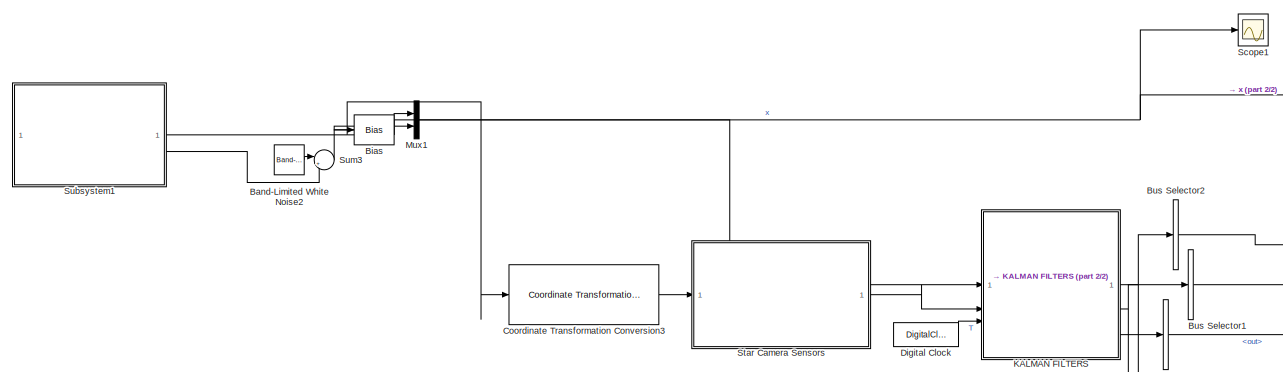
[diagram: root canvas - part 1/2, top center region]
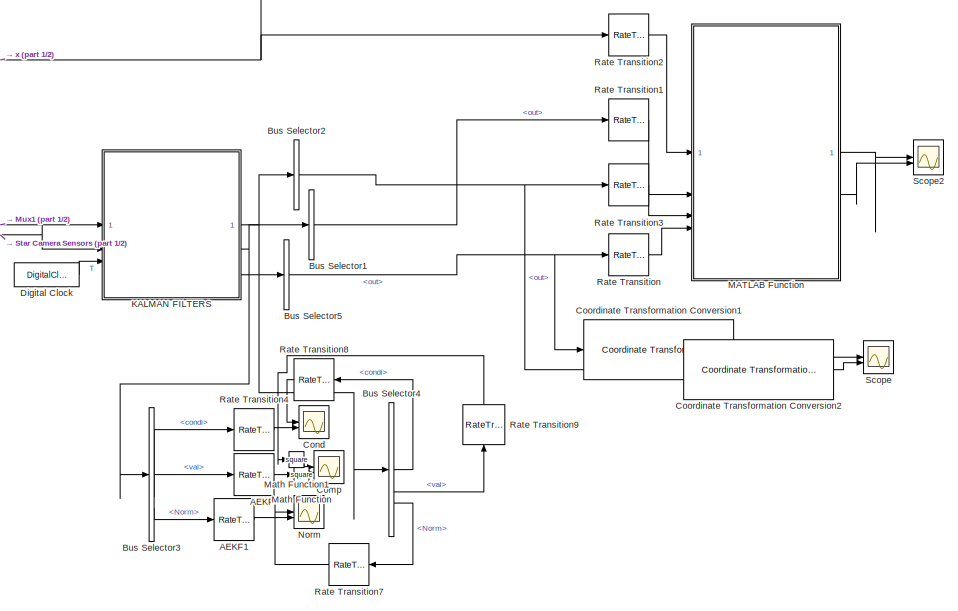
[diagram: root canvas - part 2/2, right side, full height]
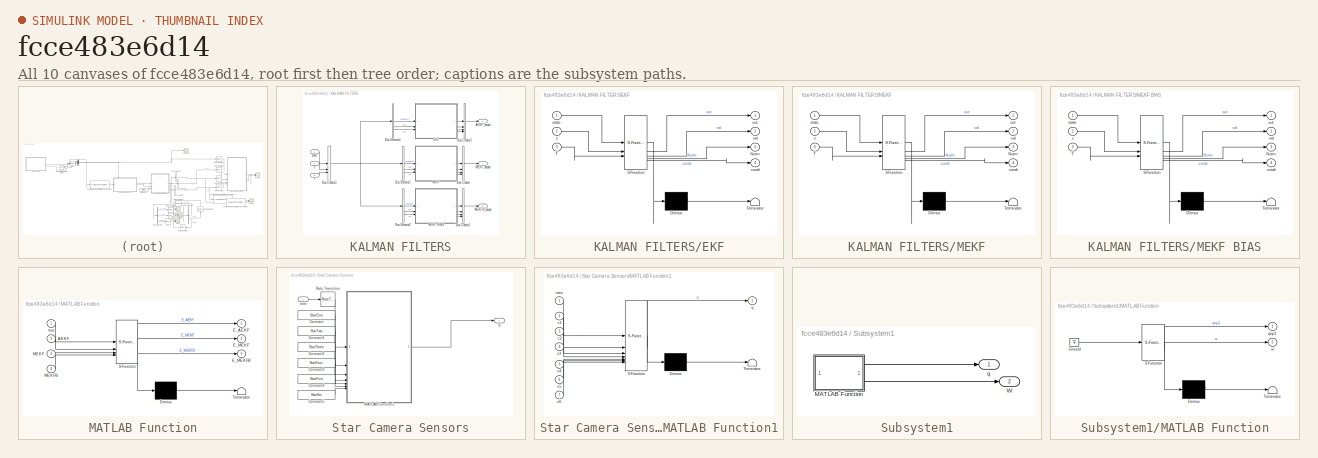
[diagram: thumbnail index - all 10 canvases of the model, root first then tree order]
MODEL slx_fcce483e6d14
KIND model
CONFIG AbsTol = auto
CONFIG EnableMultiTasking = off
CONFIG FixedStep = auto
CONFIG MaxStep = auto
CONFIG MinStep = auto
CONFIG RelTol = 1e-3
CONFIG SampleTimeConstraint = Unconstrained
CONFIG SolverName = VariableStepAuto
CONFIG StartTime = 0.0
CONFIG StopTime = timetorevolve
WORKSPACE source: mxarray member
WORKSPACE Ts_Camera = 0.1
BLOCK [RateTransition] AEKF
  Integrity = off
  OutPortSampleTime = ComTs
BLOCK [RateTransition] AEKF1
  Integrity = off
  OutPortSampleTime = ComTs
BLOCK [Reference] Band-Limited White Noise2  REF=simulink/Sources/Band-Limited
White Noise
  SourceBlock = simulink/Sources/Band-Limited\nWhite Noise
  SourceType = Band-Limited White Noise.
BLOCK [Bias] Bias
  Bias = 0.0001
  SaturateOnIntegerOverflow = off
BLOCK [BusSelector] Bus Selector1
  OutputSignals = out
BLOCK [BusSelector] Bus Selector2
  OutputSignals = out
BLOCK [BusSelector] Bus Selector3
  OutputSignals = condi,val,Norm
BLOCK [BusSelector] Bus Selector4
  OutputSignals = condi,val,Norm
BLOCK [BusSelector] Bus Selector5
  OutputSignals = out
BLOCK [Scope] Comp
  Floating = off
  NumInputPorts = 2
  ScopeSpecificationString = Simulink.scopes.TimeScopeBlockCfg('CurrentConfiguration', extmgr.ConfigurationSet(extmgr.Configuration('Core','General UI',true,'FigureColor',[1 1 1]),extmgr.Configuration('Core','Source UI',true),extmgr.Configuration('Sources','WiredSimulink',true,'DataLoggingVariableName','ScopeData3'),extmgr.Configuration('Visuals','Time Domain',true,'SerializedDisplays',{struct('MinYLimReal','-0.00000000006','...<+1842ch>
BLOCK [Scope] Cond
  Floating = off
  NumInputPorts = 2
  ScopeSpecificationString = Simulink.scopes.TimeScopeBlockCfg('CurrentConfiguration', extmgr.ConfigurationSet(extmgr.Configuration('Core','General UI',true,'FigureColor',[1 1 1]),extmgr.Configuration('Core','Source UI',true),extmgr.Configuration('Sources','WiredSimulink',true,'DataLoggingVariableName','ScopeData1'),extmgr.Configuration('Visuals','Time Domain',true,'SerializedDisplays',{struct('MinYLimReal','0.999999','MaxYLi...<+1669ch>
BLOCK [Reference] Coordinate Transformation Conversion1  REF=robotcorelib/Coordinate Transformation Conversion
  LibrarySourceBlock = robotutilslib/Coordinate Transformation Conversion
  NameLocation = left
  SourceBlock = robotcorelib/Coordinate Transformation Conversion
  SourceType = robotics.slcore.internal.block.CoordinateTransformationConversion
BLOCK [Reference] Coordinate Transformation Conversion2  REF=robotcorelib/Coordinate Transformation Conversion
  LibrarySourceBlock = robotutilslib/Coordinate Transformation Conversion
  SourceBlock = robotcorelib/Coordinate Transformation Conversion
  SourceType = robotics.slcore.internal.block.CoordinateTransformationConversion
BLOCK [Reference] Coordinate Transformation Conversion3  REF=robotcorelib/Coordinate Transformation Conversion
  LibrarySourceBlock = robotutilslib/Coordinate Transformation Conversion
  SourceBlock = robotcorelib/Coordinate Transformation Conversion
  SourceType = robotics.slcore.internal.block.CoordinateTransformationConversion
BLOCK [DigitalClock] Digital Clock
  SampleTime = Ts_System
BLOCK [SubSystem] KALMAN FILTERS
BLOCK [Outport] KALMAN FILTERS/AEKF_output
  Port = 2
BLOCK [BusCreator] KALMAN FILTERS/Bus Creator
  DisplayOption = bar
  InheritFromInputs = on
  Inputs = 4
BLOCK [BusCreator] KALMAN FILTERS/Bus Creator1
  DisplayOption = bar
  InheritFromInputs = on
  Inputs = 4
BLOCK [BusCreator] KALMAN FILTERS/Bus Creator2
  DisplayOption = bar
  InheritFromInputs = on
  Inputs = 4
BLOCK [BusCreator] KALMAN FILTERS/Bus Creator3
  DisplayOption = bar
  InheritFromInputs = on
  Inputs = 3
BLOCK [BusSelector] KALMAN FILTERS/Bus Selector1
  OutputSignals = signal1,q,T
BLOCK [BusSelector] KALMAN FILTERS/Bus Selector2
  OutputSignals = signal1,q,T
BLOCK [BusSelector] KALMAN FILTERS/Bus Selector4
  OutputSignals = signal1,q,T
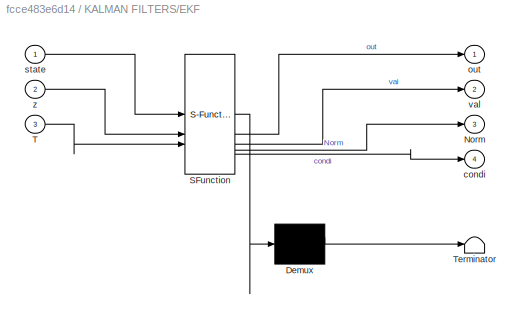
BLOCK [SubSystem] KALMAN FILTERS/EKF
  ErrorFcn = Stateflow.Translate.translate
  LibrarySourceBlock = simulink/User-Defined\nFunctions/MATLAB Function
  PermitHierarchicalResolution = ExplicitOnly
  SFBlockType = MATLAB Function
  TreatAsAtomicUnit = on
BLOCK [Demux] KALMAN FILTERS/EKF/ Demux 
  Outputs = 1
BLOCK [S-Function] KALMAN FILTERS/EKF/ SFunction 
  EnableBusSupport = on
  FunctionName = sf_sfun
  Parameters = Ts_Camera,Ts_System
  PortCounts = [3 5]
  SFcnIsStateOwnerBlock = off
  SFunctionDeploymentMode = off
  Tag = Stateflow S-Function 2
BLOCK [Terminator] KALMAN FILTERS/EKF/ Terminator 
BLOCK [Outport] KALMAN FILTERS/EKF/Norm
  Port = 3
BLOCK [Inport] KALMAN FILTERS/EKF/T
  Port = 3
BLOCK [Outport] KALMAN FILTERS/EKF/condi
  Port = 4
BLOCK [Outport] KALMAN FILTERS/EKF/out
BLOCK [Inport] KALMAN FILTERS/EKF/state
BLOCK [Outport] KALMAN FILTERS/EKF/val
  Port = 2
BLOCK [Inport] KALMAN FILTERS/EKF/z
  Port = 2
BLOCK [SubSystem] KALMAN FILTERS/MEKF
  ErrorFcn = Stateflow.Translate.translate
  LibrarySourceBlock = simulink/User-Defined\nFunctions/MATLAB Function
  PermitHierarchicalResolution = ExplicitOnly
  SFBlockType = MATLAB Function
  TreatAsAtomicUnit = on
BLOCK [SubSystem] KALMAN FILTERS/MEKF BIAS
  ErrorFcn = Stateflow.Translate.translate
  LibrarySourceBlock = simulink/User-Defined\nFunctions/MATLAB Function
  PermitHierarchicalResolution = ExplicitOnly
  SFBlockType = MATLAB Function
  TreatAsAtomicUnit = on
BLOCK [Demux] KALMAN FILTERS/MEKF BIAS/ Demux 
  Outputs = 1
BLOCK [S-Function] KALMAN FILTERS/MEKF BIAS/ SFunction 
  EnableBusSupport = on
  FunctionName = sf_sfun
  Parameters = Ts_Camera,Ts_System
  PortCounts = [3 5]
  SFcnIsStateOwnerBlock = off
  SFunctionDeploymentMode = off
  Tag = Stateflow S-Function 6
BLOCK [Terminator] KALMAN FILTERS/MEKF BIAS/ Terminator 
BLOCK [Outport] KALMAN FILTERS/MEKF BIAS/Norm
  Port = 3
BLOCK [Inport] KALMAN FILTERS/MEKF BIAS/T
  Port = 3
BLOCK [Outport] KALMAN FILTERS/MEKF BIAS/condi
  Port = 4
BLOCK [Outport] KALMAN FILTERS/MEKF BIAS/out
BLOCK [Inport] KALMAN FILTERS/MEKF BIAS/state
BLOCK [Outport] KALMAN FILTERS/MEKF BIAS/val
  Port = 2
BLOCK [Inport] KALMAN FILTERS/MEKF BIAS/z
  Port = 2
BLOCK [Demux] KALMAN FILTERS/MEKF/ Demux 
  Outputs = 1
BLOCK [S-Function] KALMAN FILTERS/MEKF/ SFunction 
  EnableBusSupport = on
  FunctionName = sf_sfun
  Parameters = Ts_Camera,Ts_System
  PortCounts = [3 5]
  SFcnIsStateOwnerBlock = off
  SFunctionDeploymentMode = off
  Tag = Stateflow S-Function 3
BLOCK [Terminator] KALMAN FILTERS/MEKF/ Terminator 
BLOCK [Outport] KALMAN FILTERS/MEKF/Norm
  Port = 3
BLOCK [Inport] KALMAN FILTERS/MEKF/T
  Port = 3
BLOCK [Outport] KALMAN FILTERS/MEKF/condi
  Port = 4
BLOCK [Outport] KALMAN FILTERS/MEKF/out
BLOCK [Inport] KALMAN FILTERS/MEKF/state
BLOCK [Outport] KALMAN FILTERS/MEKF/val
  Port = 2
BLOCK [Inport] KALMAN FILTERS/MEKF/z
  Port = 2
BLOCK [Outport] KALMAN FILTERS/MEKFB_output
  Port = 3
BLOCK [Outport] KALMAN FILTERS/MEKF_output
BLOCK [Inport] KALMAN FILTERS/T
  Port = 3
BLOCK [Inport] KALMAN FILTERS/state
BLOCK [Inport] KALMAN FILTERS/z
  Port = 2
BLOCK [SubSystem] MATLAB Function
  ErrorFcn = Stateflow.Translate.translate
  LibrarySourceBlock = simulink/User-Defined\nFunctions/MATLAB Function
  PermitHierarchicalResolution = ExplicitOnly
  SFBlockType = MATLAB Function
  TreatAsAtomicUnit = on
BLOCK [Demux] MATLAB Function/ Demux 
  Outputs = 1
BLOCK [S-Function] MATLAB Function/ SFunction 
  EnableBusSupport = on
  FunctionName = sf_sfun
  PortCounts = [4 4]
  SFcnIsStateOwnerBlock = off
  SFunctionDeploymentMode = off
  Tag = Stateflow S-Function 4
BLOCK [Terminator] MATLAB Function/ Terminator 
BLOCK [Inport] MATLAB Function/AEKF
  Port = 2
BLOCK [Outport] MATLAB Function/E_AEKF
BLOCK [Outport] MATLAB Function/E_MEKF
  Port = 2
BLOCK [Outport] MATLAB Function/E_MEKFB
  Port = 3
BLOCK [Inport] MATLAB Function/MEKF
  Port = 3
BLOCK [Inport] MATLAB Function/MEKFB
  Port = 4
BLOCK [Inport] MATLAB Function/true
BLOCK [Math] Math Function
  Operator = square
BLOCK [Math] Math Function1
  Operator = square
BLOCK [Mux] Mux1
  DisplayOption = bar
  Inputs = 2
BLOCK [Scope] Norm
  Floating = off
  NumInputPorts = 2
  ScopeSpecificationString = Simulink.scopes.TimeScopeBlockCfg('CurrentConfiguration', extmgr.ConfigurationSet(extmgr.Configuration('Core','General UI',true,'FigureColor',[1 1 1]),extmgr.Configuration('Core','Source UI',true),extmgr.Configuration('Sources','WiredSimulink',true,'DataLoggingVariableName','ScopeData2'),extmgr.Configuration('Visuals','Time Domain',true,'SerializedDisplays',{struct('MinYLimReal','-0.62','MaxYLimRe...<+1645ch>
BLOCK [RateTransition] Rate Transition
  Integrity = off
  OutPortSampleTime = ComTs
BLOCK [RateTransition] Rate Transition1
  Integrity = off
  OutPortSampleTime = ComTs
BLOCK [RateTransition] Rate Transition2
  Integrity = off
  OutPortSampleTime = ComTs
BLOCK [RateTransition] Rate Transition3
  Integrity = off
  OutPortSampleTime = ComTs
BLOCK [RateTransition] Rate Transition4
  Integrity = off
  OutPortSampleTime = ComTs
BLOCK [RateTransition] Rate Transition7
  Integrity = off
  OutPortSampleTime = ComTs
BLOCK [RateTransition] Rate Transition8
  Integrity = off
  OutPortSampleTime = ComTs
BLOCK [RateTransition] Rate Transition9
  Integrity = off
  NameLocation = right
  OutPortSampleTime = ComTs
BLOCK [Scope] Scope
  Floating = off
  NumInputPorts = 2
  ScopeSpecificationString = Simulink.scopes.TimeScopeBlockCfg('CurrentConfiguration', extmgr.ConfigurationSet(extmgr.Configuration('Core','General UI',true),extmgr.Configuration('Core','Source UI',true),extmgr.Configuration('Sources','WiredSimulink',true,'DataLoggingVariableName','ScopeData1'),extmgr.Configuration('Visuals','Time Domain',true,'SerializedDisplays',{struct('MinYLimReal','-3.92691','MaxYLimReal','3.92693','YLab...<+1916ch>
BLOCK [Scope] Scope1
  Floating = off
  NumInputPorts = 1
  ScopeSpecificationString = Simulink.scopes.TimeScopeBlockCfg('CurrentConfiguration', extmgr.ConfigurationSet(extmgr.Configuration('Core','General UI',true,'FigureColor',[0 0 0]),extmgr.Configuration('Core','Source UI',true),extmgr.Configuration('Sources','WiredSimulink',true,'DataLoggingVariableName','ScopeData1'),extmgr.Configuration('Visuals','Time Domain',true,'SerializedDisplays',{struct('MinYLimReal','-0.67411','MaxYLi...<+1423ch>
BLOCK [Scope] Scope2
  Floating = off
  NumInputPorts = 2
  ScopeSpecificationString = Simulink.scopes.TimeScopeBlockCfg('CurrentConfiguration', extmgr.ConfigurationSet(extmgr.Configuration('Core','General UI',true,'FigureColor',[1 1 1]),extmgr.Configuration('Core','Source UI',true),extmgr.Configuration('Sources','WiredSimulink',true,'DataLoggingVariableName','ScopeData1'),extmgr.Configuration('Visuals','Time Domain',true,'SerializedDisplays',{struct('MinYLimReal','0.00792','MaxYLim...<+1732ch>
BLOCK [SubSystem] Star Camera Sensors
BLOCK [Constant] Star Camera Sensors/Constant
  Value = StarOne
BLOCK [Constant] Star Camera Sensors/Constant1
  Value = StarTwo
BLOCK [Constant] Star Camera Sensors/Constant2
  Value = StarThree
BLOCK [Constant] Star Camera Sensors/Constant3
  Value = StarFour
BLOCK [Constant] Star Camera Sensors/Constant4
  Value = StarFive
BLOCK [Constant] Star Camera Sensors/Constant5
  Value = StarSix
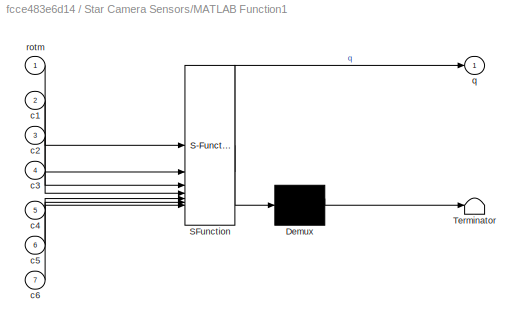
BLOCK [SubSystem] Star Camera Sensors/MATLAB Function1
  ErrorFcn = Stateflow.Translate.translate
  LibrarySourceBlock = simulink/User-Defined\nFunctions/MATLAB Function
  PermitHierarchicalResolution = ExplicitOnly
  SFBlockType = MATLAB Function
  TreatAsAtomicUnit = on
BLOCK [Demux] Star Camera Sensors/MATLAB Function1/ Demux 
  Outputs = 1
BLOCK [S-Function] Star Camera Sensors/MATLAB Function1/ SFunction 
  EnableBusSupport = on
  FunctionName = sf_sfun
  PortCounts = [7 2]
  SFcnIsStateOwnerBlock = off
  SFunctionDeploymentMode = off
  Tag = Stateflow S-Function 1
BLOCK [Terminator] Star Camera Sensors/MATLAB Function1/ Terminator 
BLOCK [Inport] Star Camera Sensors/MATLAB Function1/c1
  Port = 2
BLOCK [Inport] Star Camera Sensors/MATLAB Function1/c2
  Port = 3
BLOCK [Inport] Star Camera Sensors/MATLAB Function1/c3
  Port = 4
BLOCK [Inport] Star Camera Sensors/MATLAB Function1/c4
  Port = 5
BLOCK [Inport] Star Camera Sensors/MATLAB Function1/c5
  Port = 6
BLOCK [Inport] Star Camera Sensors/MATLAB Function1/c6
  Port = 7
BLOCK [Outport] Star Camera Sensors/MATLAB Function1/q
BLOCK [Inport] Star Camera Sensors/MATLAB Function1/rotm
BLOCK [RateTransition] Star Camera Sensors/Rate Transition
  Integrity = off
  OutPortSampleTime = Ts_Camera
BLOCK [Outport] Star Camera Sensors/q
BLOCK [Inport] Star Camera Sensors/rotm
BLOCK [SubSystem] Subsystem1
BLOCK [SubSystem] Subsystem1/MATLAB Function
  ErrorFcn = Stateflow.Translate.translate
  LibrarySourceBlock = simulink/User-Defined\nFunctions/MATLAB Function
  PermitHierarchicalResolution = ExplicitOnly
  SFBlockType = MATLAB Function
  TreatAsAtomicUnit = on
BLOCK [Demux] Subsystem1/MATLAB Function/ Demux 
  Outputs = 1
BLOCK [Ground] Subsystem1/MATLAB Function/ Ground 
BLOCK [S-Function] Subsystem1/MATLAB Function/ SFunction 
  EnableBusSupport = on
  FunctionName = sf_sfun
  Parameters = ConstantO,Ts_System
  PortCounts = [1 3]
  SFcnIsStateOwnerBlock = off
  SFunctionDeploymentMode = off
  Tag = Stateflow S-Function 5
BLOCK [Terminator] Subsystem1/MATLAB Function/ Terminator 
BLOCK [Outport] Subsystem1/MATLAB Function/qnp1
BLOCK [Outport] Subsystem1/MATLAB Function/w
  Port = 2
BLOCK [Outport] Subsystem1/W
  Port = 2
BLOCK [Outport] Subsystem1/q
BLOCK [Sum] Sum3
  Inputs = |++
LINE AEKF1:1 -> Norm:2
LINE AEKF:1 -> Math Function:1
LINE Band-Limited White Noise2:1 -> Sum3:1
LINE Bias:1 -> Mux1:2
LINE Bus Selector1:1 -> Rate Transition1:1
NET Bus Selector2:1 -> Coordinate Transformation Conversion2:1, Rate Transition3:1
LINE Bus Selector3:1 -> Rate Transition4:1
LINE Bus Selector3:2 -> AEKF:1
LINE Bus Selector3:3 -> AEKF1:1
LINE Bus Selector4:1 -> Rate Transition8:1
LINE Bus Selector4:2 -> Rate Transition9:1
LINE Bus Selector4:3 -> Rate Transition7:1
NET Bus Selector5:1 -> Coordinate Transformation Conversion1:1, Rate Transition:1
LINE Coordinate Transformation Conversion1:1 -> Scope:1
LINE Coordinate Transformation Conversion2:1 -> Scope:2
LINE Coordinate Transformation Conversion3:1 -> Star Camera Sensors:1
LINE Digital Clock:1 -> KALMAN FILTERS:3
LINE KALMAN FILTERS/Bus Creator1:1 -> KALMAN FILTERS/MEKFB_output:1
LINE KALMAN FILTERS/Bus Creator2:1 -> KALMAN FILTERS/AEKF_output:1
NET KALMAN FILTERS/Bus Creator3:1 -> KALMAN FILTERS/Bus Selector1:1, KALMAN FILTERS/Bus Selector2:1, KALMAN FILTERS/Bus Selector4:1
LINE KALMAN FILTERS/Bus Creator:1 -> KALMAN FILTERS/MEKF_output:1
LINE KALMAN FILTERS/Bus Selector1:1 -> KALMAN FILTERS/MEKF:1
LINE KALMAN FILTERS/Bus Selector1:2 -> KALMAN FILTERS/MEKF:2
LINE KALMAN FILTERS/Bus Selector1:3 -> KALMAN FILTERS/MEKF:3
LINE KALMAN FILTERS/Bus Selector2:1 -> KALMAN FILTERS/MEKF BIAS:1
LINE KALMAN FILTERS/Bus Selector2:2 -> KALMAN FILTERS/MEKF BIAS:2
LINE KALMAN FILTERS/Bus Selector2:3 -> KALMAN FILTERS/MEKF BIAS:3
LINE KALMAN FILTERS/Bus Selector4:1 -> KALMAN FILTERS/EKF:1
LINE KALMAN FILTERS/Bus Selector4:2 -> KALMAN FILTERS/EKF:2
LINE KALMAN FILTERS/Bus Selector4:3 -> KALMAN FILTERS/EKF:3
LINE KALMAN FILTERS/EKF:1 -> KALMAN FILTERS/Bus Creator2:1
LINE KALMAN FILTERS/EKF:2 -> KALMAN FILTERS/Bus Creator2:2
LINE KALMAN FILTERS/EKF:3 -> KALMAN FILTERS/Bus Creator2:3
LINE KALMAN FILTERS/EKF:4 -> KALMAN FILTERS/Bus Creator2:4
LINE KALMAN FILTERS/MEKF BIAS:1 -> KALMAN FILTERS/Bus Creator1:1
LINE KALMAN FILTERS/MEKF BIAS:2 -> KALMAN FILTERS/Bus Creator1:2
LINE KALMAN FILTERS/MEKF BIAS:3 -> KALMAN FILTERS/Bus Creator1:3
LINE KALMAN FILTERS/MEKF BIAS:4 -> KALMAN FILTERS/Bus Creator1:4
LINE KALMAN FILTERS/MEKF:1 -> KALMAN FILTERS/Bus Creator:1
LINE KALMAN FILTERS/MEKF:2 -> KALMAN FILTERS/Bus Creator:2
LINE KALMAN FILTERS/MEKF:3 -> KALMAN FILTERS/Bus Creator:3
LINE KALMAN FILTERS/MEKF:4 -> KALMAN FILTERS/Bus Creator:4
LINE KALMAN FILTERS/T:1 -> KALMAN FILTERS/Bus Creator3:3
LINE KALMAN FILTERS/state:1 -> KALMAN FILTERS/Bus Creator3:1
LINE KALMAN FILTERS/z:1 -> KALMAN FILTERS/Bus Creator3:2
NET KALMAN FILTERS:1 -> Bus Selector2:1, Bus Selector4:1
NET KALMAN FILTERS:2 -> Bus Selector1:1, Bus Selector3:1
LINE KALMAN FILTERS:3 -> Bus Selector5:1
LINE MATLAB Function:1 -> Scope2:1
LINE MATLAB Function:2 -> Scope2:2
LINE Math Function1:1 -> Comp:1
LINE Math Function:1 -> Comp:2
LINE Mux1:1 -> KALMAN FILTERS:1
LINE Rate Transition1:1 -> MATLAB Function:2
LINE Rate Transition2:1 -> MATLAB Function:1
LINE Rate Transition3:1 -> MATLAB Function:3
LINE Rate Transition4:1 -> Cond:2
LINE Rate Transition7:1 -> Norm:1
LINE Rate Transition8:1 -> Cond:1
LINE Rate Transition9:1 -> Math Function1:1
LINE Rate Transition:1 -> MATLAB Function:4
LINE Star Camera Sensors/Constant1:1 -> Star Camera Sensors/MATLAB Function1:3
LINE Star Camera Sensors/Constant2:1 -> Star Camera Sensors/MATLAB Function1:4
LINE Star Camera Sensors/Constant3:1 -> Star Camera Sensors/MATLAB Function1:5
LINE Star Camera Sensors/Constant4:1 -> Star Camera Sensors/MATLAB Function1:6
LINE Star Camera Sensors/Constant5:1 -> Star Camera Sensors/MATLAB Function1:7
LINE Star Camera Sensors/Constant:1 -> Star Camera Sensors/MATLAB Function1:2
LINE Star Camera Sensors/MATLAB Function1:1 -> Star Camera Sensors/q:1
LINE Star Camera Sensors/Rate Transition:1 -> Star Camera Sensors/MATLAB Function1:1
LINE Star Camera Sensors/rotm:1 -> Star Camera Sensors/Rate Transition:1
LINE Star Camera Sensors:1 -> KALMAN FILTERS:2
LINE Subsystem1/MATLAB Function:1 -> Subsystem1/q:1
LINE Subsystem1/MATLAB Function:2 -> Subsystem1/W:1
NET Subsystem1:1 -> Coordinate Transformation Conversion3:1, Mux1:1, Rate Transition2:1, Scope1:1
LINE Subsystem1:2 -> Sum3:2
LINE Sum3:1 -> Bias:1
note: NET lines group one-source signal fan-out (src -> all destinations, sorted); 1:1 wires keep LINE
CHART Star Camera Sensors/MATLAB Function1 states=1 transitions=1
  STATE_LABEL 'eML_blk_kernel()'
  STATE_LABEL "SCRIPT:\nfunction q  = fcn(rotm,c1,c2,c3,c4,c5,c6)\npose=rotm2eul(rotm);\npersistent Cam1 Cam2 Cam3 Cam4 Cam5 Cam6\nfor i=1\nif isempty(Cam1)\nstars=100;\nStar_Base=zeros(3,stars);\nfor i=1:stars\n    v=[rand*randi([-5 5],1);rand*randi([-5 5],1);rand*randi([-5 5],1)];\nStar_Base(:,i)=v/norm(v);\nend \n\nmap=Star_Base;\n\nC1_R=eul2rotm([0,0,0]);\nC2_R=eul2rotm([0,0,pi/2],'XYZ');\nC3_R=eul2rotm([0,0,-pi],'XYZ');\nC4_...<+861ch>"
CHART KALMAN FILTERS/EKF states=1 transitions=1
  STATE_LABEL 'eML_blk_kernel()'
  STATE_LABEL "SCRIPT:\nfunction [out,val,Norm,condi]= fcn(state,z, Ts_System, Ts_Camera,T)\npersistent  P Q Rn x\ntic\nif isempty(Q)\n    P = 0.1*eye(4);\n    Q = 10*eye(4);\n    Rn = 0.1*eye(4);\n    x=state(1:4);\nend\n\n\nw=state(5:end);\nA=Amatrix(w(1),w(2),w(3),Ts_System);\n%C=Cmatrix2(z(1),z(2),z(3),z(4));\nC=eye(4);\n% EKF\n%%Prediction\nx_hat = A*x;\nx_hat=x_hat/norm(x_hat);\np_hat = A*P*A' + Q;\nif z(1)<999 & mod(T,Ts_Came...<+258ch>"
CHART KALMAN FILTERS/MEKF states=1 transitions=1
  STATE_LABEL 'eML_blk_kernel()'
  STATE_LABEL "SCRIPT:\nfunction [out,val,Norm,condi] = fcn(state,z, Ts_System, Ts_Camera,T)\npersistent  P Rn x A q_ref\n   \nif isempty(P)\n    P = 0.0001*eye(3);\n    Rn = 0.01*eye(3);\n    x=[0,0,0]';\n    q_ref=state(1:4);\n\n\nend\ntic\nQ=Qmatrix(Ts_System);\nQ=Q(1:3,1:3);\nG=[-eye(3)];\nH=[eye(3)];\n\n%%Prediction\n\nw=state(5:end);\nq_pred=Amatrix(w(1),w(2),w(3),Ts_System)*q_ref;\nwx=[0 -w(3) w(2);\n    w(3) 0 -w(1);\n   -w(2) ...<+600ch>"
CHART MATLAB Function states=1 transitions=1
  STATE_LABEL 'eML_blk_kernel()'
  STATE_LABEL 'SCRIPT:\nfunction [E_AEKF,E_MEKF,E_MEKFB] = fcn(true,AEKF,MEKF,MEKFB)\n\ntrue=abs(true);\nAEKF=abs(AEKF);\nMEKF=(abs(MEKF));\nE_MEKF=sqrt(norm(true-MEKF));\nE_MEKFB=(norm(true-MEKFB));\nE_AEKF=sqrt(norm(true-AEKF));\n\n'
CHART Subsystem1/MATLAB Function states=1 transitions=1
  STATE_LABEL 'eML_blk_kernel()'
  STATE_LABEL "SCRIPT:\nfunction [qnp1,w]= fcn(Ts_System, ConstantO)\npersistent q  \n\nif isempty(q)\nv=[1,1,1,1];\nq=(v/norm(v))';\nend\n\n\n\nc=ConstantO;\nw=[0,1,0]'*c;\nqnp1=Amatrix(w(1),w(2),w(3),Ts_System)*q;\nqnp1=qnp1/norm(qnp1);\nq=qnp1;\n\n\n"
CHART KALMAN FILTERS/MEKF BIAS states=1 transitions=1
  STATE_LABEL 'eML_blk_kernel()'
  STATE_LABEL "SCRIPT:\nfunction [out,val,Norm,condi] = fcn(state,z, Ts_System, Ts_Camera,T)\npersistent  P Rn x A q_ref B\n   \nif isempty(P)\n    P = 0.1*eye(6);\n    B=zeros(3,1)*0.1;\n    Rn = 0.01*eye(3);\n    x=[0,0,0,0,0,0]';\n    q_ref=state(1:4);\n\n\nend\ntic\nQ=Qmatrix(Ts_System);\nG=[-eye(3) zeros(3);zeros(3) eye(3)];\nH=[eye(3),zeros(3,3)];\n\n%%Prediction\n\nw=state(5:end)-B;\nq_pred=Amatrix(w(1),w(2),w(3),Ts_System)*q...<+662ch>"
CHART  states=0 transitions=0
CHART  states=0 transitions=0
CHART  states=0 transitions=0
CHART  states=0 transitions=0
CHART  states=0 transitions=0
CHART  states=0 transitions=0
